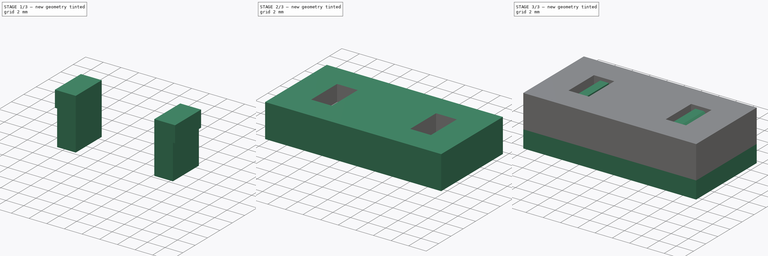
[diagram: build sequence overview — one tinted view per stage of 3, left to right]
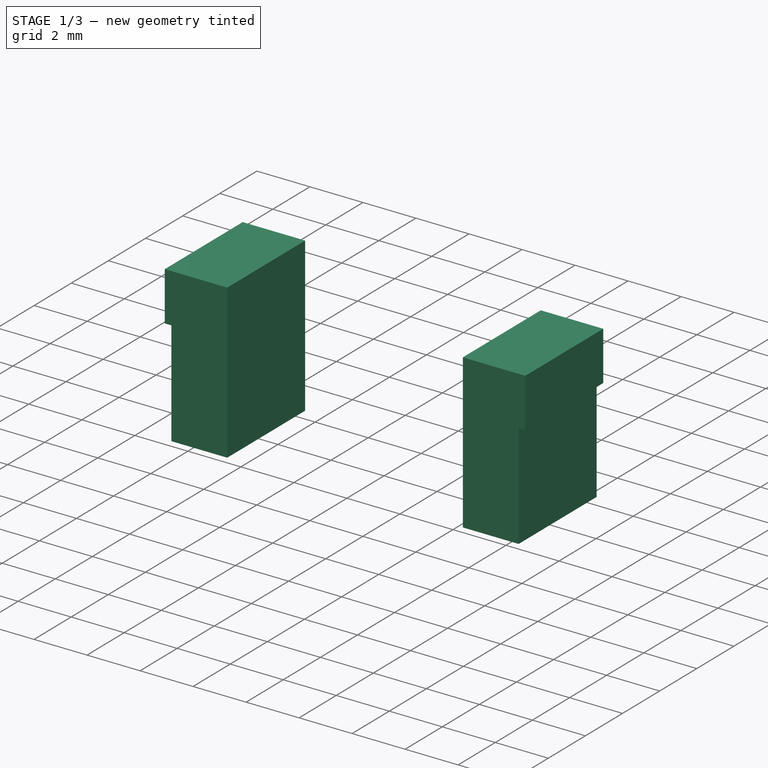
[diagram: stage 1 of 3 — iso view after this stage's code; geometry added in this stage tinted green]
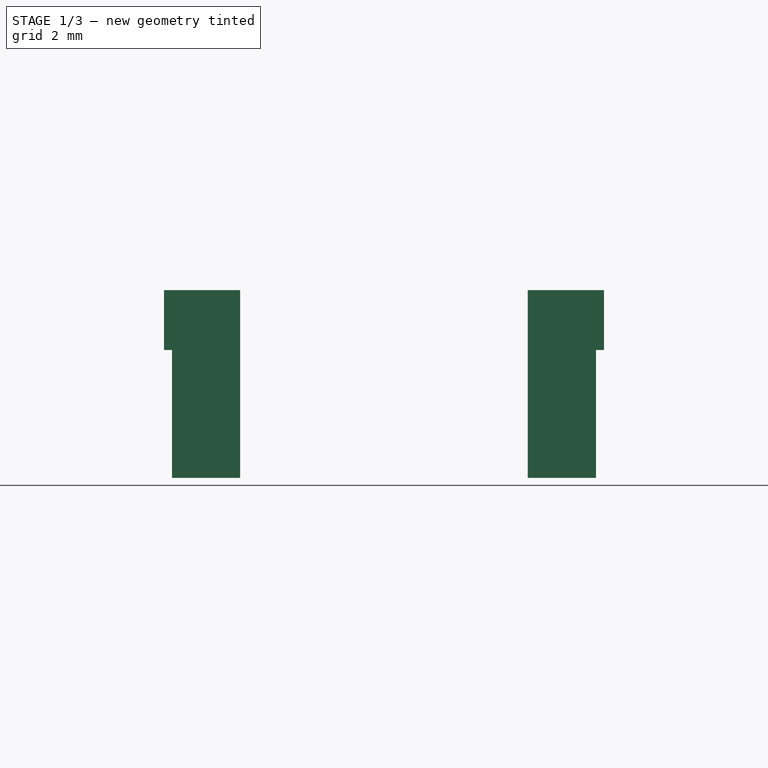
[diagram: stage 1 of 3 — front view after this stage's code; geometry added in this stage tinted green]
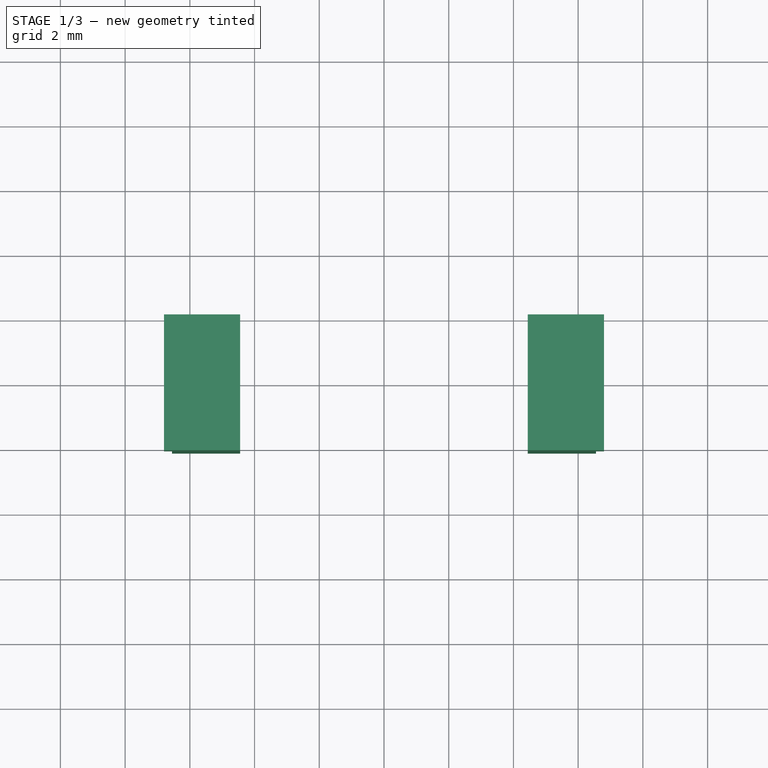
[diagram: stage 1 of 3 — top view after this stage's code; geometry added in this stage tinted green]
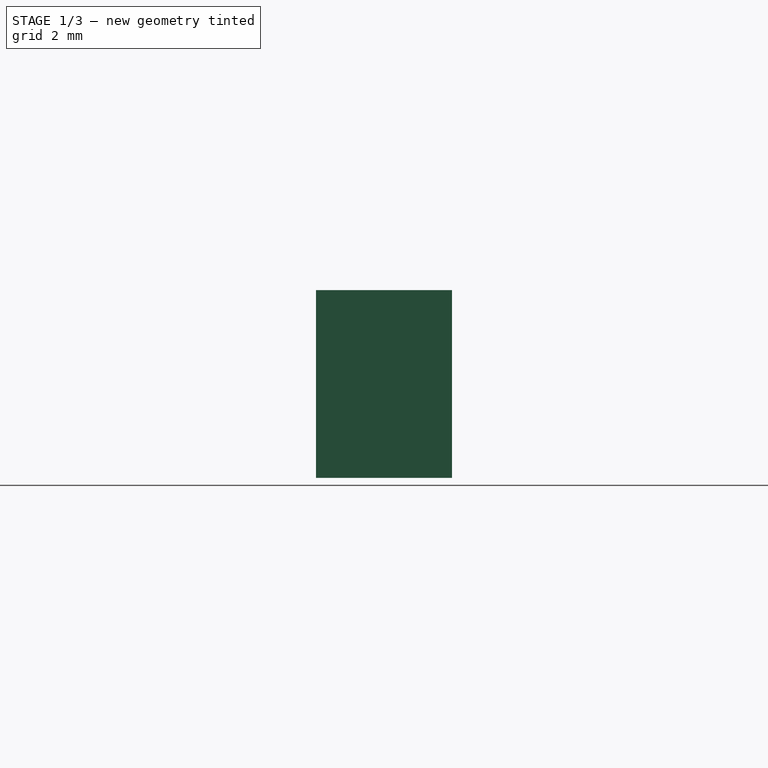
[diagram: stage 1 of 3 — right view after this stage's code; geometry added in this stage tinted green]
FCSTD DOCUMENT  (FreeCAD 0.18R16093 (Git))
Label: snapfittest
License: All rights reserved
LicenseURL: http://en.wikipedia.org/wiki/All_rights_reserved
objects: Sketcher::SketchObject×2, Part::Extrusion×2, Part::Box×2, Part::MultiFuse×2, PartDesign::Body×1, Part::Mirroring×1, Part::Cut×1
note: 11 computed .brp shape members not serialized (recipe doc carries the construction recipe); baked Part::Feature solids carry a one-line shape summary decoded from their .brp

FEATURE [Part::Extrusion] Extrude001
  Base = -> Sketch001
  Dir = (0,-1,-2e-16)
  DirMode = 2
  FaceMakerClass = Part::FaceMakerBullseye
  LengthFwd = 2.1
  LengthRev = 2.1
  Solid = true
  Symmetric = false
FEATURE [Part::Mirroring] Part__Mirroring  label="Extrude001 (Mirror #1)"
  Base = (0,0,0)
  Normal = (1,0,0)
  Source = -> Extrude001
FEATURE [Part::MultiFuse] Fusion001
  Shapes = -> [Part__Mirroring,Extrude001]
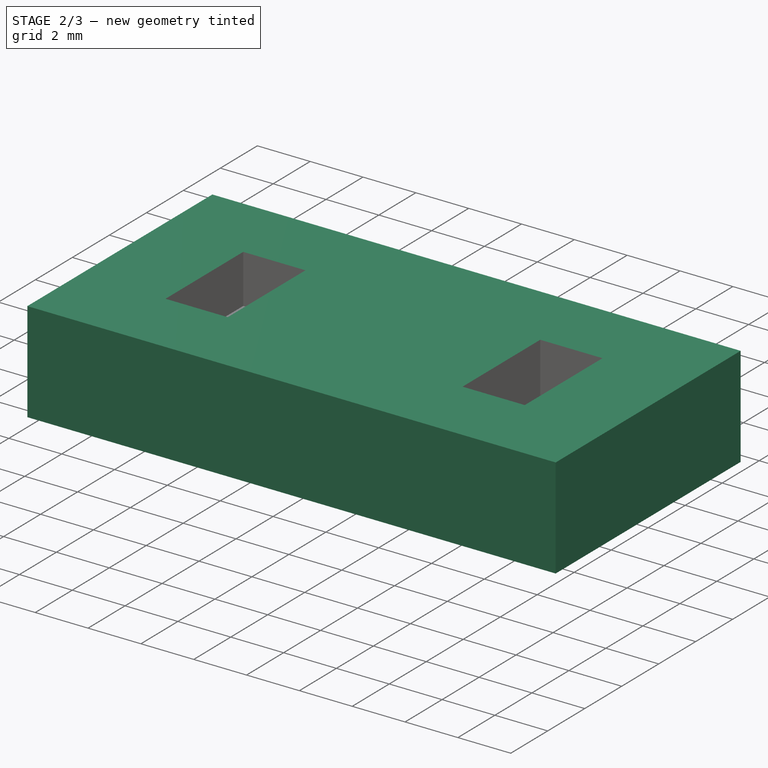
[diagram: stage 2 of 3 — iso view after this stage's code; geometry added in this stage tinted green]
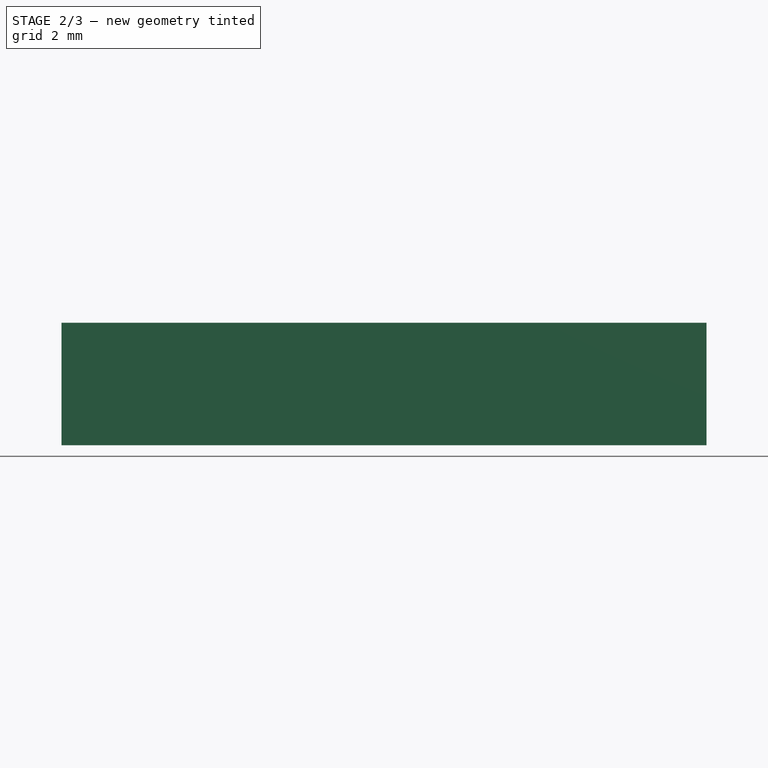
[diagram: stage 2 of 3 — front view after this stage's code; geometry added in this stage tinted green]
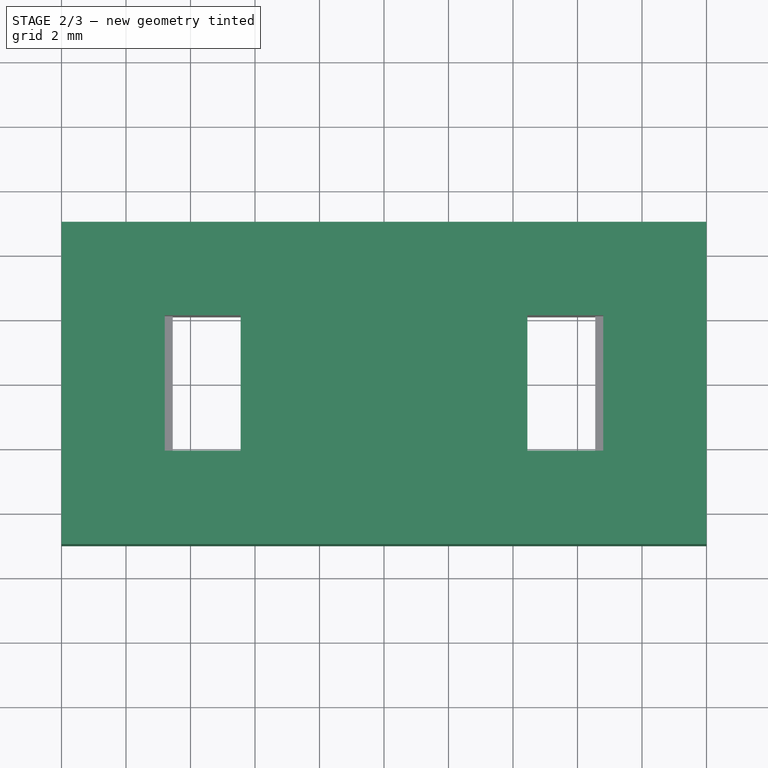
[diagram: stage 2 of 3 — top view after this stage's code; geometry added in this stage tinted green]
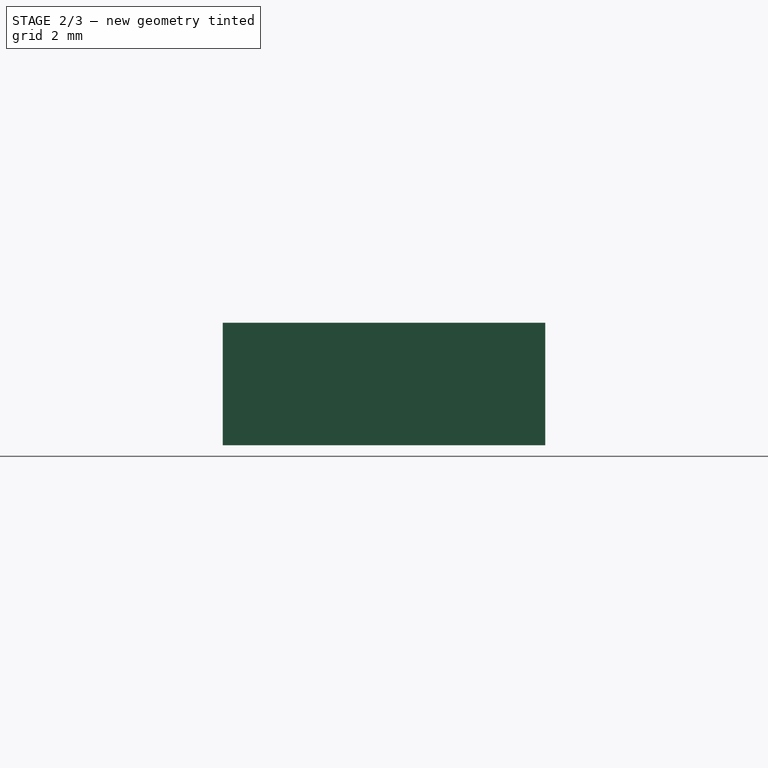
[diagram: stage 2 of 3 — right view after this stage's code; geometry added in this stage tinted green]
FEATURE [Part::Box] Box001  label="Cube001"
  AttacherType = Attacher::AttachEngine3D
  Height = 3.8
  Length = 20
  Placement = pos=(-10,-5,2) rot=(0,0,1;0rad)
  Width = 10
FEATURE [Part::Cut] Cut
  Base = -> Box001
  Tool = -> Fusion001
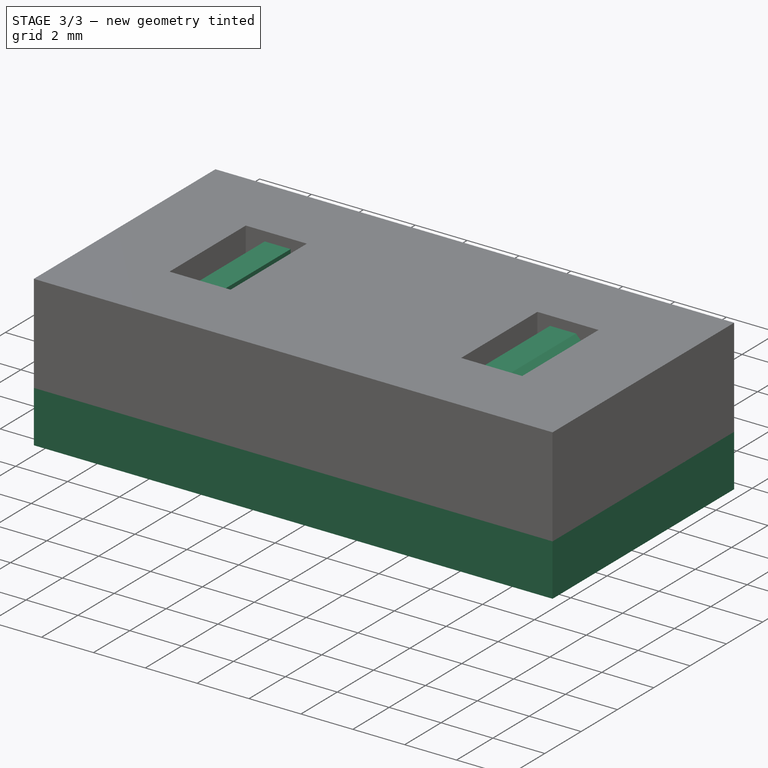
[diagram: stage 3 of 3 — iso view after this stage's code; geometry added in this stage tinted green]
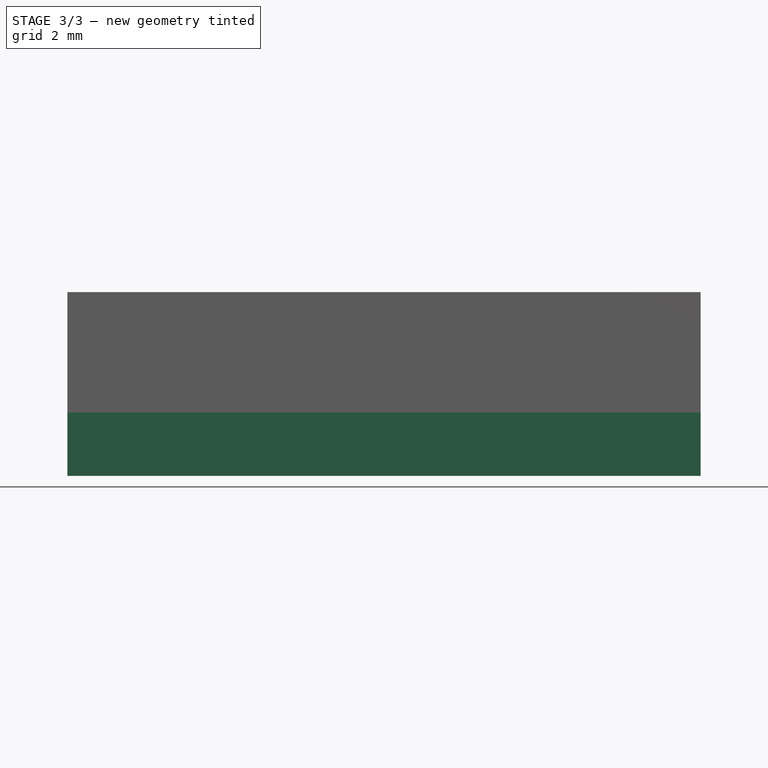
[diagram: stage 3 of 3 — front view after this stage's code; geometry added in this stage tinted green]
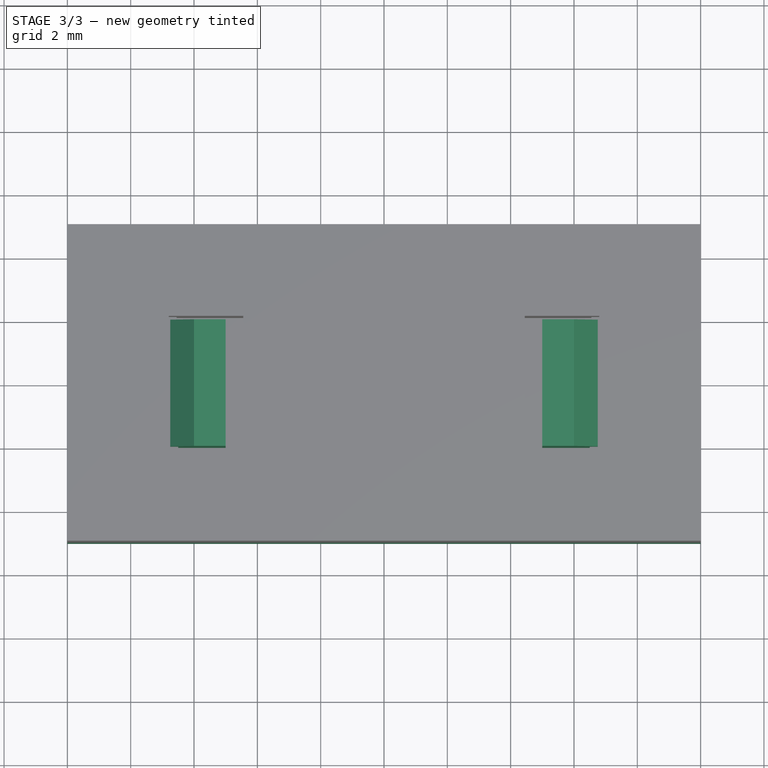
[diagram: stage 3 of 3 — top view after this stage's code; geometry added in this stage tinted green]
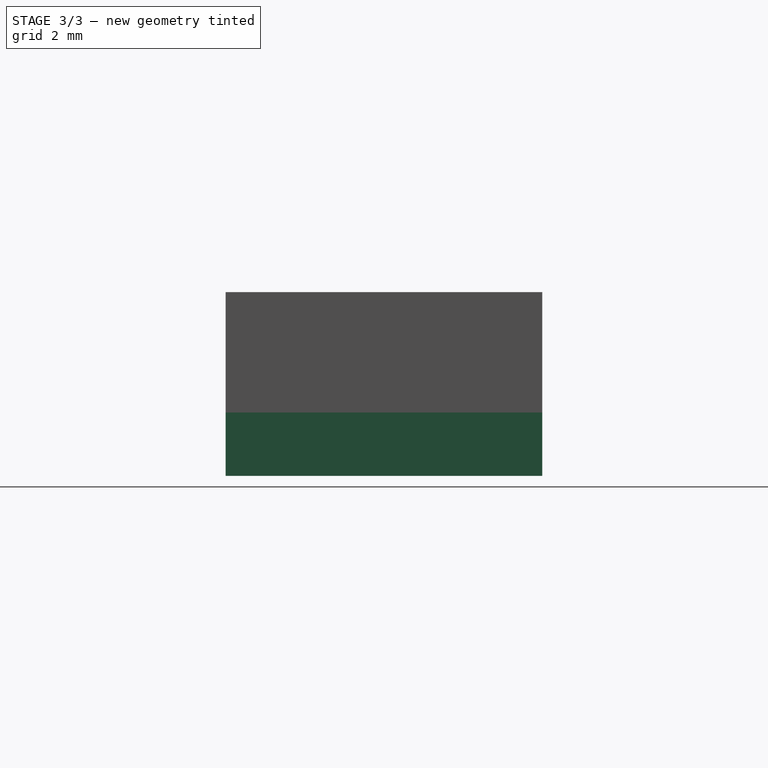
[diagram: stage 3 of 3 — right view after this stage's code; geometry added in this stage tinted green]
FEATURE [Sketcher::SketchObject] Sketch
  MapMode = 5
  Placement = pos=(0,0,0) rot=(1,0,0;1.5708rad)
  Support = -> [XZ_Plane]
  sketch-geometry (18):
    g0: LineSegment StartX=-10 StartY=0 StartZ=0 EndX=-10 EndY=2 EndZ=0
    g1: LineSegment StartX=-10 StartY=2 StartZ=0 EndX=-6.5 EndY=2 EndZ=0
    g2: LineSegment StartX=-6.5 StartY=2 StartZ=0 EndX=-6.5 EndY=4 EndZ=0
    g3: LineSegment StartX=-6.5 StartY=4 StartZ=0 EndX=-6.75 EndY=4 EndZ=0
    g4: LineSegment StartX=-6.75 StartY=4.75 StartZ=0 EndX=-6 EndY=5.5 EndZ=0
    g5: LineSegment StartX=-5 StartY=5.5 StartZ=0 EndX=-5 EndY=2 EndZ=0
    g6: LineSegment StartX=-5 StartY=2 StartZ=0 EndX=5 EndY=2 EndZ=0
    g7: LineSegment StartX=5 StartY=2 StartZ=0 EndX=5 EndY=5.5 EndZ=0
    g8: LineSegment StartX=6 StartY=5.5 StartZ=0 EndX=6.75 EndY=4.75 EndZ=0
    g9: LineSegment StartX=6.75 StartY=4 StartZ=0 EndX=6.5 EndY=4 EndZ=0
    g10: LineSegment StartX=6.5 StartY=4 StartZ=0 EndX=6.5 EndY=2 EndZ=0
    g11: LineSegment StartX=6.5 StartY=2 StartZ=0 EndX=10 EndY=2 EndZ=0
    g12: LineSegment StartX=10 StartY=2 StartZ=0 EndX=10 EndY=0 EndZ=0
    g13: LineSegment StartX=10 StartY=0 StartZ=0 EndX=-10 EndY=0 EndZ=0
    g14: LineSegment StartX=-6.75 StartY=4 StartZ=0 EndX=-6.75 EndY=4.75 EndZ=0
    g15: LineSegment StartX=-6 StartY=5.5 StartZ=0 EndX=-5 EndY=5.5 EndZ=0
    g16: LineSegment StartX=6.75 StartY=4.75 StartZ=0 EndX=6.75 EndY=4 EndZ=0
    g17: LineSegment StartX=6 StartY=5.5 StartZ=0 EndX=5 EndY=5.5 EndZ=0
  constraints (49):
    c: Vertical(g0)
    c: Coincident(g0,g1)
    c: Horizontal(g1)
    c: Coincident(g1,g2)
    c: Vertical(g2)
    c: Coincident(g2,g3)
    c: Vertical(g5)
    c: Coincident(g5,g6)
    c: Horizontal(g6)
    c: Coincident(g6,g7)
    c: Vertical(g7)
    c: Coincident(g9,g10)
    c: Vertical(g10)
    c: Coincident(g10,g11)
    c: Coincident(g11,g12)
    c: Vertical(g12)
    c: Coincident(g12,g13)
    c: Coincident(g13,g0)
    c: Horizontal(g9)
    c: Horizontal(g11)
    c: Symmetric(g12,g0,g-2)
    c: Horizontal(g10,g6)
    c: Horizontal(g6,g1)
    c: DistanceX(g1,g5) = 1.5
    c: DistanceX(g6,g6) = 10
    c: DistanceX(g0,g11) = 20
    c: Horizontal(g12,g-1)
    c: DistanceY(g12,g11) = 2
    c: Coincident(g14,g3)
    c: Coincident(g14,g4)
    c: Vertical(g14)
    c: Coincident(g15,g4)
    c: Coincident(g15,g5)
    c: Horizontal(g15)
    c: Angle(g-1,g4) = 0.785398
    c: DistanceX(g3,g3) = 0.25
    c: DistanceY(g2,g2) = 2
    c: DistanceY(g3,g4) = 1.5
    c: Horizontal(g3)
    c: Symmetric(g5,g7,g-2)
    c: DistanceX(g4,g4) = 0.75
    c: Coincident(g16,g8)
    c: Coincident(g16,g9)
    c: Vertical(g16)
    c: Coincident(g17,g8)
    c: Coincident(g17,g7)
    c: Symmetric(g8,g4,g-2)
    c: Symmetric(g8,g4,g-2)
    c: Symmetric(g9,g2,g-2)
FEATURE [Sketcher::SketchObject] Sketch001
  ExternalGeometry = -> [Sketch]
  MapMode = 5
  Placement = pos=(0,0,0) rot=(1,0,0;1.5708rad)
  Support = -> [XZ_Plane]
  sketch-geometry (6):
    g0: LineSegment StartX=6.55 StartY=0 StartZ=0 EndX=6.55 EndY=3.95 EndZ=0
    g1: LineSegment StartX=6.55 StartY=3.95 StartZ=0 EndX=6.8 EndY=3.95 EndZ=0
    g2: LineSegment StartX=6.8 StartY=3.95 StartZ=0 EndX=6.8 EndY=5.8 EndZ=0
    g3: LineSegment StartX=6.8 StartY=5.8 StartZ=0 EndX=4.44416 EndY=5.8 EndZ=0
    g4: LineSegment StartX=4.44416 StartY=5.8 StartZ=0 EndX=4.44416 EndY=0 EndZ=0
    g5: LineSegment StartX=4.44416 StartY=0 StartZ=0 EndX=6.55 EndY=0 EndZ=0
  constraints (17):
    c: Vertical(g0)
    c: Coincident(g0,g1)
    c: Horizontal(g1)
    c: Coincident(g1,g2)
    c: Vertical(g2)
    c: Coincident(g2,g3)
    c: Horizontal(g3)
    c: Coincident(g3,g4)
    c: Vertical(g4)
    c: Coincident(g4,g5)
    c: Coincident(g5,g0)
    c: Horizontal(g5)
    c: Horizontal(g4,g-1)
    c: DistanceY(g-1,g3) = 5.8
    c: DistanceX(g-3,g0) = 0.05
    c: DistanceX(g-5,g1) = 0.05
    c: DistanceY(g1,g-5) = 0.05
FEATURE [PartDesign::Body] Body
  Group = -> [Sketch,Sketch001]
  Origin = -> Origin
FEATURE [Part::Extrusion] Extrude
  Base = -> Sketch
  Dir = (0,-1,-2e-16)
  DirMode = 2
  FaceMakerClass = Part::FaceMakerBullseye
  LengthFwd = 2
  LengthRev = 2
  Solid = true
  Symmetric = false
FEATURE [Part::Box] Box  label="Cube"
  AttacherType = Attacher::AttachEngine3D
  Height = 2
  Length = 20
  Placement = pos=(-10,-5,0) rot=(0,0,1;0rad)
  Width = 10
FEATURE [Part::MultiFuse] Fusion
  Shapes = -> [Extrude,Box]
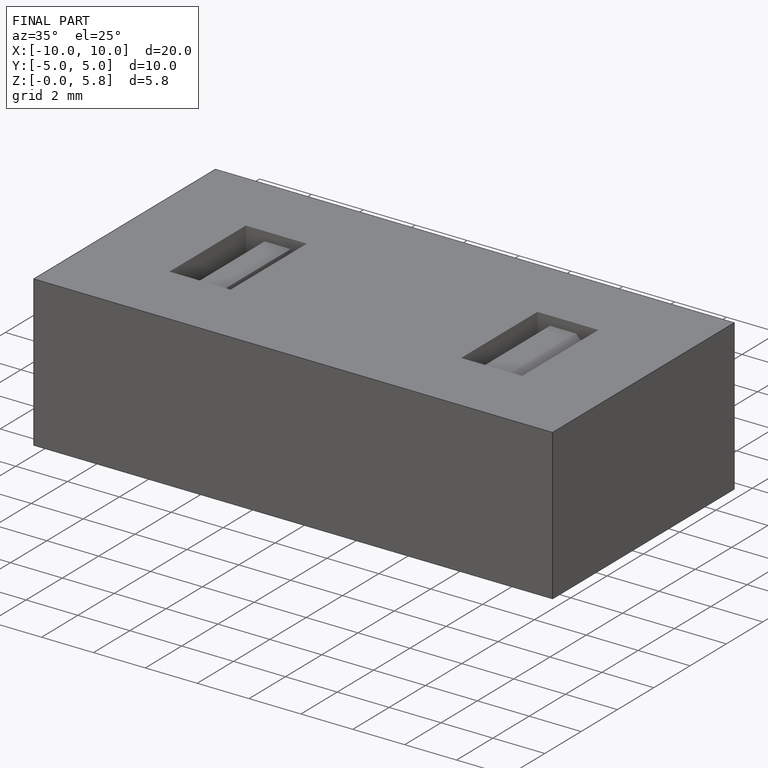
[diagram: finished part — iso view with bounding-box wireframe]
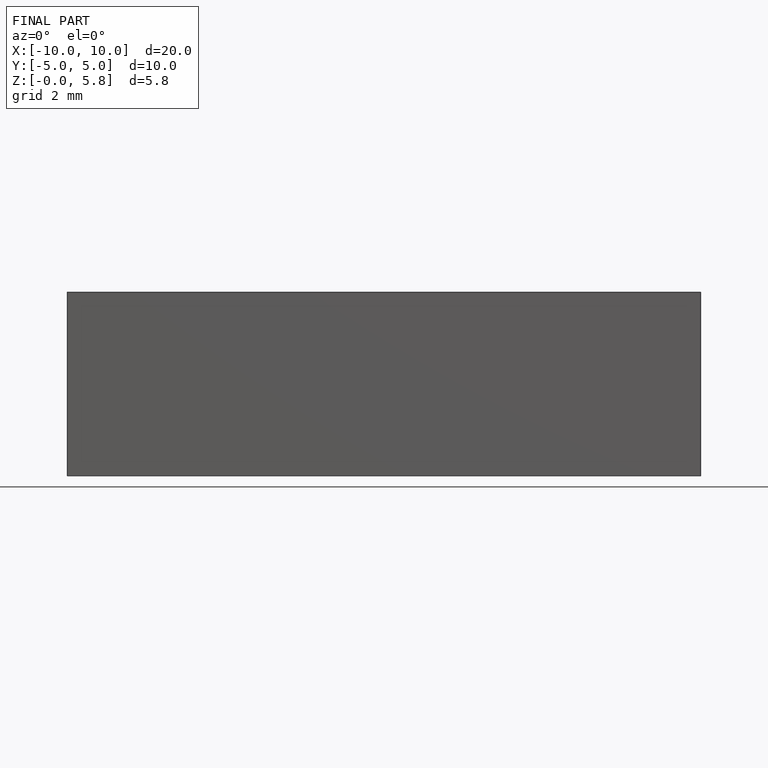
[diagram: finished part — front view with bounding-box wireframe]
